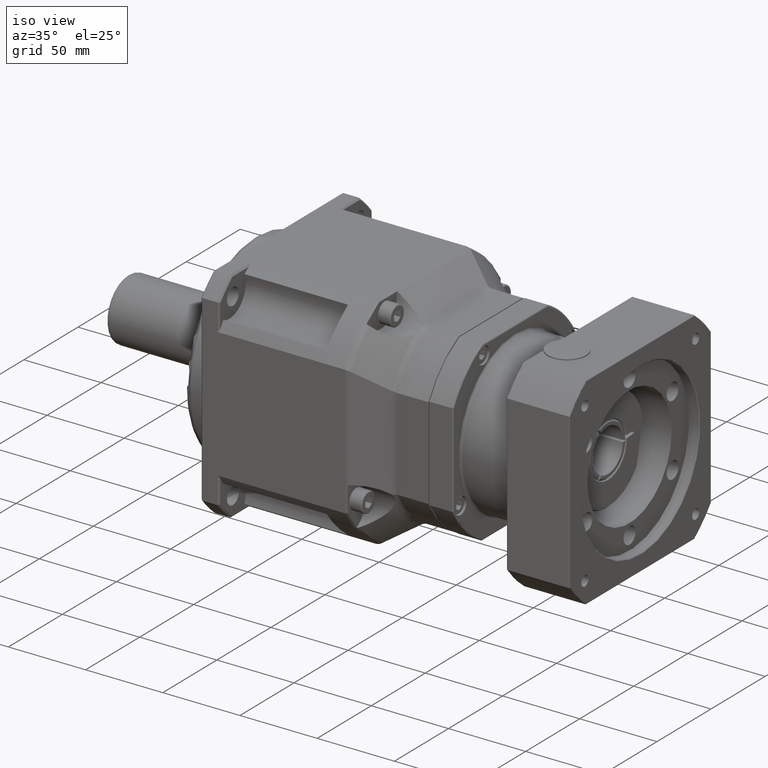
[diagram: clean part render]
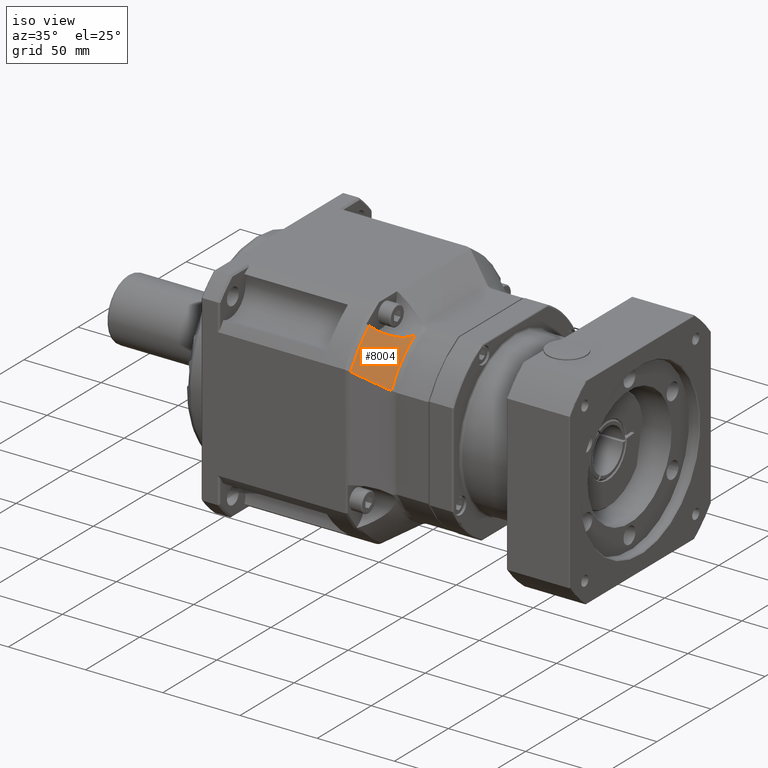
[diagram: same view with one face highlighted and labeled with its STEP entity id]
A machine part, iso view. The second image highlights one B-rep face of the part: STEP entity #8004.
In plain terms, the highlighted face is a freeform B-spline surface patch.
Its self-contained STEP definition (entity closure, byte-faithful):
#34=B_SPLINE_SURFACE_WITH_KNOTS('',3,3,((#13754,#13755,#13756,#13757),(#13758,
#13759,#13760,#13761),(#13762,#13763,#13764,#13765),(#13766,#13767,#13768,
#13769),(#13770,#13771,#13772,#13773)),.UNSPECIFIED.,.F.,.F.,.F.,(4,1,4),
(4,4),(0.,0.356139318412054,0.83099174296146),(0.0665513149751303,0.933568387707799),
 .UNSPECIFIED.);
#83=B_SPLINE_CURVE_WITH_KNOTS('',3,(#13088,#13089,#13090,#13091,#13092),
 .UNSPECIFIED.,.F.,.F.,(4,1,4),(-3.51225178888097,-2.4198505748998,-1.92211268305419E-15),
 .UNSPECIFIED.);
#118=B_SPLINE_CURVE_WITH_KNOTS('',3,(#13420,#13421,#13422,#13423,#13424),
 .UNSPECIFIED.,.F.,.F.,(4,1,4),(-3.93745531475317,-2.253483935037,-1.37732270200572),
 .UNSPECIFIED.);
#154=B_SPLINE_CURVE_WITH_KNOTS('',3,(#13730,#13731,#13732,#13733,#13734,
#13735,#13736,#13737,#13738,#13739),.UNSPECIFIED.,.F.,.F.,(4,2,2,2,4),(-3.17043196880341,
-3.0971788136667,-2.44696304213039,-1.3633293079808,-0.184787416691171),
 .UNSPECIFIED.);
#443=LINE('',#13753,#830);
#830=VECTOR('',#10350,24.105594712999);
#2007=FACE_OUTER_BOUND('',#2704,.T.);
#2704=EDGE_LOOP('',(#6186,#6187,#6188,#6189));
#3763=VERTEX_POINT('',#13065);
#3765=VERTEX_POINT('',#13087);
#3805=VERTEX_POINT('',#13414);
#3806=VERTEX_POINT('',#13419);
#4596=EDGE_CURVE('',#3763,#3765,#83,.T.);
#4651=EDGE_CURVE('',#3805,#3806,#118,.T.);
#4703=EDGE_CURVE('',#3763,#3806,#154,.T.);
#4710=EDGE_CURVE('',#3805,#3765,#443,.T.);
#6186=ORIENTED_EDGE('',*,*,#4596,.F.);
#6187=ORIENTED_EDGE('',*,*,#4703,.T.);
#6188=ORIENTED_EDGE('',*,*,#4651,.F.);
#6189=ORIENTED_EDGE('',*,*,#4710,.T.);
#8004=ADVANCED_FACE('',(#2007),#34,.F.);
#10350=DIRECTION('',(0.755238106831922,0.485510211534808,-0.440335368196061));
#13065=CARTESIAN_POINT('',(-135.955907656727,-186.706966157782,-22.033327634022));
#13087=CARTESIAN_POINT('',(-135.954449130973,-208.706831362124,-46.4181444905481));
#13088=CARTESIAN_POINT('Ctrl Pts',(-135.955908123742,-186.706903885575,
-22.0337817419169));
#13089=CARTESIAN_POINT('Ctrl Pts',(-135.956496594525,-189.577666101453,
-23.9317896909173));
#13090=CARTESIAN_POINT('Ctrl Pts',(-135.9576326283,-198.329936047635,-30.7578430580347));
#13091=CARTESIAN_POINT('Ctrl Pts',(-135.956443927928,-205.177049382163,
-39.6624870844317));
#13092=CARTESIAN_POINT('Ctrl Pts',(-135.954449140677,-208.706824921275,
-46.4181488937205));
#13414=CARTESIAN_POINT('',(-154.159912846076,-220.410343750405,-35.8035985670147));
#13419=CARTESIAN_POINT('',(-154.161571815573,-203.258882404765,-15.2852570267867));
#13420=CARTESIAN_POINT('Ctrl Pts',(-154.159912846076,-220.410343750405,
-35.8035985670147));
#13421=CARTESIAN_POINT('Ctrl Pts',(-154.160943682002,-217.429957546938,
-30.7233577519832));
#13422=CARTESIAN_POINT('Ctrl Pts',(-154.161863028191,-212.054075926631,
-23.4942443867312));
#13423=CARTESIAN_POINT('Ctrl Pts',(-154.161734273546,-205.584709941135,
-17.2813226463095));
#13424=CARTESIAN_POINT('Ctrl Pts',(-154.161569931687,-203.257955702088,
-15.2865317038521));
#13730=CARTESIAN_POINT('Ctrl Pts',(-135.955907656727,-186.706966157782,
-22.033327634022));
#13731=CARTESIAN_POINT('Ctrl Pts',(-136.025190475563,-186.879928636416,
-22.0777075408631));
#13732=CARTESIAN_POINT('Ctrl Pts',(-136.0983138902,-187.052464166813,-22.118685936737));
#13733=CARTESIAN_POINT('Ctrl Pts',(-136.85585404674,-188.750923616947,-22.4908450951145));
#13734=CARTESIAN_POINT('Ctrl Pts',(-137.810516983884,-190.218480467313,
-22.5627406505926));
#13735=CARTESIAN_POINT('Ctrl Pts',(-140.61970517712,-193.798764885896,-22.2931892820003));
#13736=CARTESIAN_POINT('Ctrl Pts',(-142.885765346369,-195.989286660103,
-21.6221354966525));
#13737=CARTESIAN_POINT('Ctrl Pts',(-148.16990984543,-200.09686984517,-19.2413711944708));
#13738=CARTESIAN_POINT('Ctrl Pts',(-151.182871404345,-201.934555983968,
-17.4678057470986));
#13739=CARTESIAN_POINT('Ctrl Pts',(-154.161571815573,-203.258882404765,
-15.2852570267867));
#13753=CARTESIAN_POINT('',(-155.559385272836,-221.310004596179,-34.9876476758408));
#13754=CARTESIAN_POINT('Ctrl Pts',(-154.161807658359,-220.411561844015,
-35.8024938122933));
#13755=CARTESIAN_POINT('Ctrl Pts',(-148.09268814923,-216.509985016718,-39.3410440383783));
#13756=CARTESIAN_POINT('Ctrl Pts',(-142.023568640101,-212.608408189421,
-42.8795942644632));
#13757=CARTESIAN_POINT('Ctrl Pts',(-135.954449130973,-208.706831362124,
-46.4181444905481));
#13758=CARTESIAN_POINT('Ctrl Pts',(-154.161807658359,-217.929078656338,
-31.5724464847749));
#13759=CARTESIAN_POINT('Ctrl Pts',(-148.09268814923,-214.122880382755,-35.1203071080262));
#13760=CARTESIAN_POINT('Ctrl Pts',(-142.023568640101,-210.316543278495,
-38.668153418583));
#13761=CARTESIAN_POINT('Ctrl Pts',(-135.954449130973,-206.510345004912,
-42.2160140418342));
#13762=CARTESIAN_POINT('Ctrl Pts',(-154.161807658359,-211.238896008197,
-22.2280776118849));
#13763=CARTESIAN_POINT('Ctrl Pts',(-148.09268814923,-207.599422800024,-25.8075254653832));
#13764=CARTESIAN_POINT('Ctrl Pts',(-142.023568640101,-203.960113657337,
-29.3867848408199));
#13765=CARTESIAN_POINT('Ctrl Pts',(-135.954449130973,-200.320640449164,
-32.9662326943181));
#13766=CARTESIAN_POINT('Ctrl Pts',(-154.161807658359,-202.707787858969,
-14.472884038464));
#13767=CARTESIAN_POINT('Ctrl Pts',(-148.09268814923,-199.131918120477,-18.1556523160241));
#13768=CARTESIAN_POINT('Ctrl Pts',(-142.023568640101,-195.555454933811,
-21.8391453718556));
#13769=CARTESIAN_POINT('Ctrl Pts',(-135.954449130973,-191.97958519532,-25.5219136494157));
#13770=CARTESIAN_POINT('Ctrl Pts',(-154.161807658359,-197.372923938067,
-10.6900135555601));
#13771=CARTESIAN_POINT('Ctrl Pts',(-148.09268814923,-193.817319851366,-14.4714211632916));
#13772=CARTESIAN_POINT('Ctrl Pts',(-142.023568640101,-190.261715764665,
-18.2528287710231));
#13773=CARTESIAN_POINT('Ctrl Pts',(-135.954449130973,-186.706111677964,
-22.0342363787546));